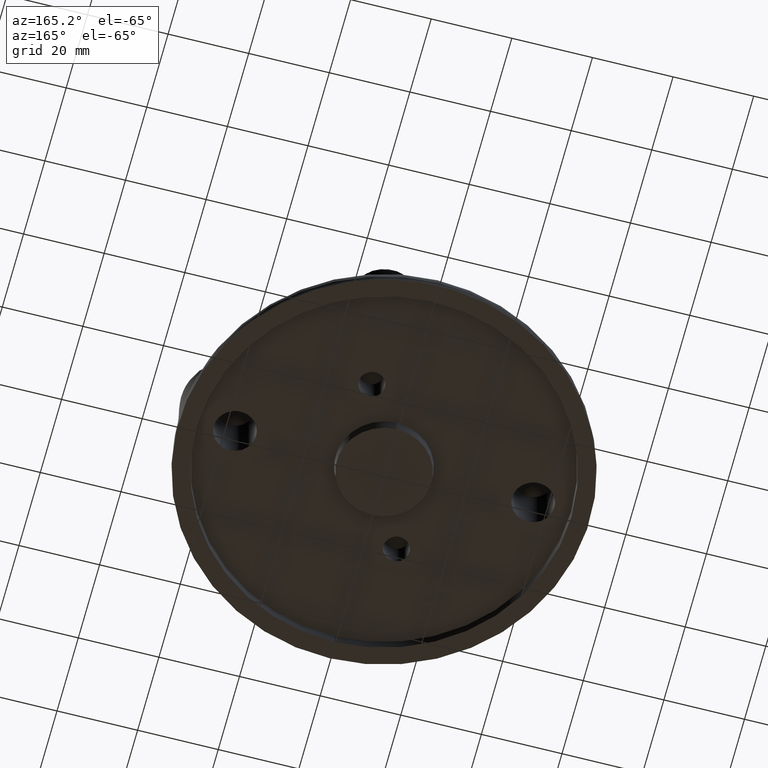
[diagram: clean part render]
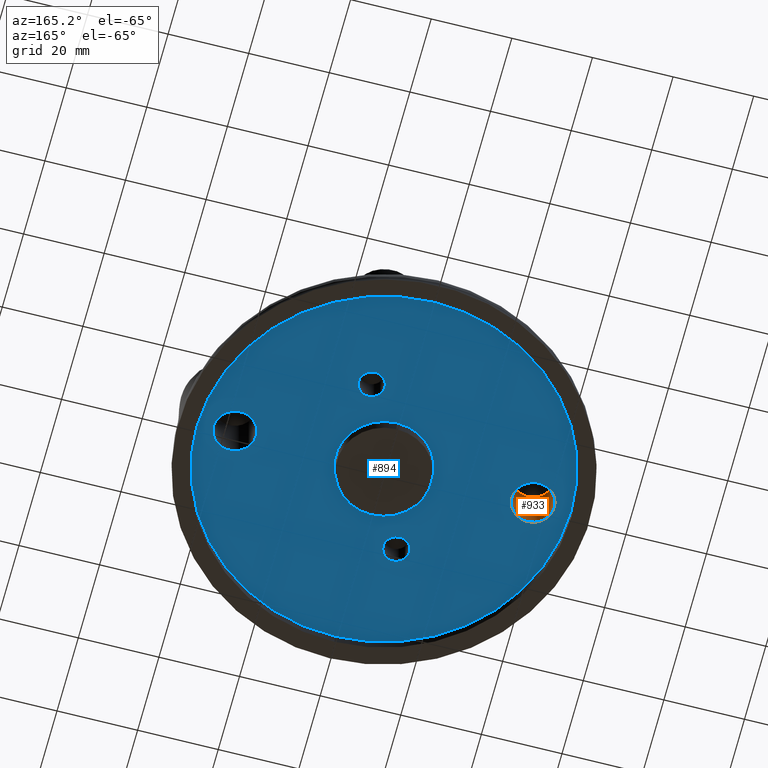
[diagram: same view with the hole feature highlighted: cylindrical wall and planar end face, labeled with their STEP entity ids]
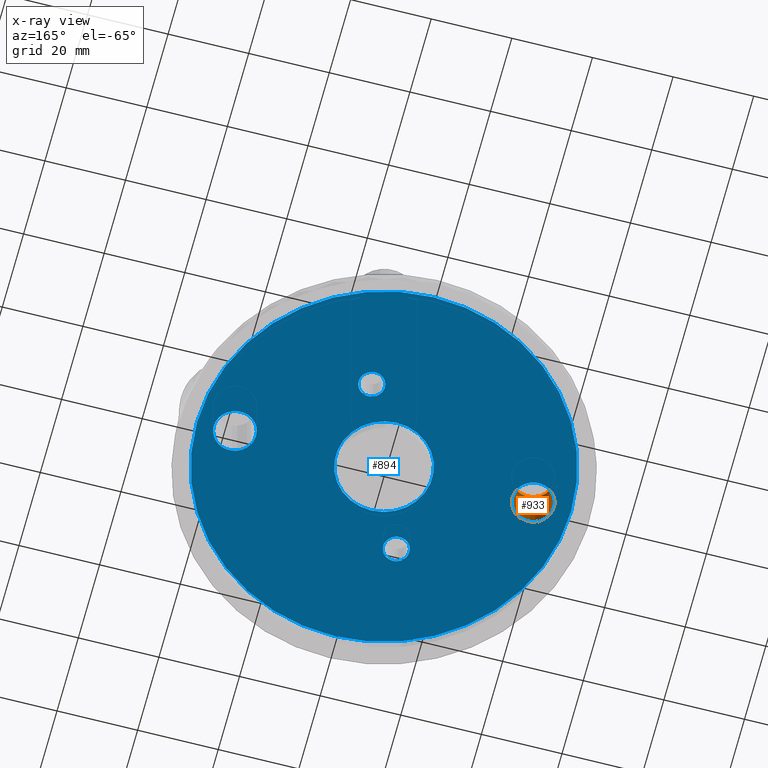
[diagram: x-ray of the same camera — body ghosted, the hole faces saturated]
A machine part, auxiliary view. The highlighted faces form one hole feature of diameter 10.5 mm: the cylindrical wall (entity #933, orange) and its adjacent planar end face (entity #894, blue) — they share a circular edge in the B-rep.
The next image is the same camera in x-ray (body ghosted, the hole faces saturated) — the bore reads through the body.
Wall:
#87=CYLINDRICAL_SURFACE('',#1052,5.25);
#101=LINE('',#5355,#123);
#123=VECTOR('',#1256,5.25);
#184=FACE_OUTER_BOUND('',#251,.T.);
#251=EDGE_LOOP('',(#734,#735,#736,#737));
#276=CIRCLE('',#983,5.25);
#324=CIRCLE('',#1053,5.25);
#350=VERTEX_POINT('',#1363);
#402=VERTEX_POINT('',#5353);
#431=EDGE_CURVE('',#350,#350,#276,.F.);
#518=EDGE_CURVE('',#402,#402,#324,.T.);
#519=EDGE_CURVE('',#402,#350,#101,.T.);
#734=ORIENTED_EDGE('',*,*,#518,.T.);
#735=ORIENTED_EDGE('',*,*,#519,.T.);
#736=ORIENTED_EDGE('',*,*,#431,.T.);
#737=ORIENTED_EDGE('',*,*,#519,.F.);
#933=ADVANCED_FACE('',(#184),#87,.F.);
#983=AXIS2_PLACEMENT_3D('',#1364,#1107,#1108);
#1052=AXIS2_PLACEMENT_3D('',#5352,#1252,#1253);
#1053=AXIS2_PLACEMENT_3D('',#5354,#1254,#1255);
#1107=DIRECTION('center_axis',(0.,1.171453E-15,1.));
#1108=DIRECTION('ref_axis',(0.,-1.,1.171453E-15));
#1252=DIRECTION('center_axis',(0.,0.,-1.));
#1253=DIRECTION('ref_axis',(-1.,0.,0.));
#1254=DIRECTION('center_axis',(0.,0.,1.));
#1255=DIRECTION('ref_axis',(1.,0.,0.));
#1256=DIRECTION('',(0.,0.,-1.));
#1363=CARTESIAN_POINT('',(-31.75,-6.42939569552361E-16,3.00000000000004));
#1364=CARTESIAN_POINT('Origin',(-37.,3.51436E-15,3.00000000000004));
#5352=CARTESIAN_POINT('Origin',(-37.,0.,17.2000000000001));
#5353=CARTESIAN_POINT('',(-31.75,0.,17.2000000000001));
#5354=CARTESIAN_POINT('Origin',(-37.,0.,17.2000000000001));
#5355=CARTESIAN_POINT('',(-31.75,-6.42939569552361E-16,17.2000000000001));
End face:
#138=FACE_BOUND('',#206,.T.);
#139=FACE_BOUND('',#207,.T.);
#140=FACE_BOUND('',#208,.T.);
#141=FACE_BOUND('',#209,.T.);
#142=FACE_BOUND('',#210,.T.);
#145=FACE_OUTER_BOUND('',#205,.T.);
#205=EDGE_LOOP('',(#557));
#206=EDGE_LOOP('',(#558));
#207=EDGE_LOOP('',(#559));
#208=EDGE_LOOP('',(#560));
#209=EDGE_LOOP('',(#561));
#210=EDGE_LOOP('',(#562));
#272=CIRCLE('',#979,46.3985037042238);
#273=CIRCLE('',#980,5.25);
#274=CIRCLE('',#981,3.25);
#275=CIRCLE('',#982,3.25);
#276=CIRCLE('',#983,5.25);
#277=CIRCLE('',#984,11.9949682465201);
#346=VERTEX_POINT('',#1355);
#347=VERTEX_POINT('',#1357);
#348=VERTEX_POINT('',#1359);
#349=VERTEX_POINT('',#1361);
#350=VERTEX_POINT('',#1363);
#351=VERTEX_POINT('',#1365);
#427=EDGE_CURVE('',#346,#346,#272,.T.);
#428=EDGE_CURVE('',#347,#347,#273,.F.);
#429=EDGE_CURVE('',#348,#348,#274,.T.);
#430=EDGE_CURVE('',#349,#349,#275,.T.);
#431=EDGE_CURVE('',#350,#350,#276,.F.);
#432=EDGE_CURVE('',#351,#351,#277,.T.);
#557=ORIENTED_EDGE('',*,*,#427,.T.);
#558=ORIENTED_EDGE('',*,*,#428,.F.);
#559=ORIENTED_EDGE('',*,*,#429,.T.);
#560=ORIENTED_EDGE('',*,*,#430,.T.);
#561=ORIENTED_EDGE('',*,*,#431,.F.);
#562=ORIENTED_EDGE('',*,*,#432,.F.);
#817=PLANE('',#978);
#894=ADVANCED_FACE('',(#145,#138,#139,#140,#141,#142),#817,.F.);
#978=AXIS2_PLACEMENT_3D('',#1354,#1097,#1098);
#979=AXIS2_PLACEMENT_3D('',#1356,#1099,#1100);
#980=AXIS2_PLACEMENT_3D('',#1358,#1101,#1102);
#981=AXIS2_PLACEMENT_3D('',#1360,#1103,#1104);
#982=AXIS2_PLACEMENT_3D('',#1362,#1105,#1106);
#983=AXIS2_PLACEMENT_3D('',#1364,#1107,#1108);
#984=AXIS2_PLACEMENT_3D('',#1366,#1109,#1110);
#1097=DIRECTION('center_axis',(0.,1.171453E-15,1.));
#1098=DIRECTION('ref_axis',(0.,-1.,1.171453E-15));
#1099=DIRECTION('center_axis',(0.,-1.171453E-15,-1.));
#1100=DIRECTION('ref_axis',(0.,1.,-1.171453E-15));
#1101=DIRECTION('center_axis',(0.,1.171453E-15,1.));
#1102=DIRECTION('ref_axis',(0.,-1.,1.171453E-15));
#1103=DIRECTION('center_axis',(0.,1.171453E-15,1.));
#1104=DIRECTION('ref_axis',(0.,-1.,1.171453E-15));
#1105=DIRECTION('center_axis',(0.,1.171453E-15,1.));
#1106=DIRECTION('ref_axis',(0.,-1.,1.171453E-15));
#1107=DIRECTION('center_axis',(0.,1.171453E-15,1.));
#1108=DIRECTION('ref_axis',(0.,-1.,1.171453E-15));
#1109=DIRECTION('center_axis',(0.,-1.171453E-15,-1.));
#1110=DIRECTION('ref_axis',(0.,1.,-1.171453E-15));
#1354=CARTESIAN_POINT('Origin',(-46.3985037042238,-4.937801E-14,3.00000000000004));
#1355=CARTESIAN_POINT('',(-5.68217790466042E-15,-46.3985037042238,3.0000000000001));
#1356=CARTESIAN_POINT('Origin',(0.,7.02872E-15,3.00000000000004));
#1357=CARTESIAN_POINT('',(42.25,-6.42939569552361E-16,3.00000000000004));
#1358=CARTESIAN_POINT('Origin',(37.,3.51436E-15,3.00000000000004));
#1359=CARTESIAN_POINT('',(5.169035512032,20.3253497152484,2.99999999999999));
#1360=CARTESIAN_POINT('Origin',(8.419035512032,20.3253497152484,3.));
#1361=CARTESIAN_POINT('',(-11.669035512032,-20.3253497152482,3.00000000000009));
#1362=CARTESIAN_POINT('Origin',(-8.419035512032,-20.3253497152482,3.00000000000009));
#1363=CARTESIAN_POINT('',(-31.75,-6.42939569552361E-16,3.00000000000004));
#1364=CARTESIAN_POINT('Origin',(-37.,3.51436E-15,3.00000000000004));
#1365=CARTESIAN_POINT('',(0.,11.9949682465201,3.00000000000003));
#1366=CARTESIAN_POINT('Origin',(0.,7.02872E-15,3.00000000000004));